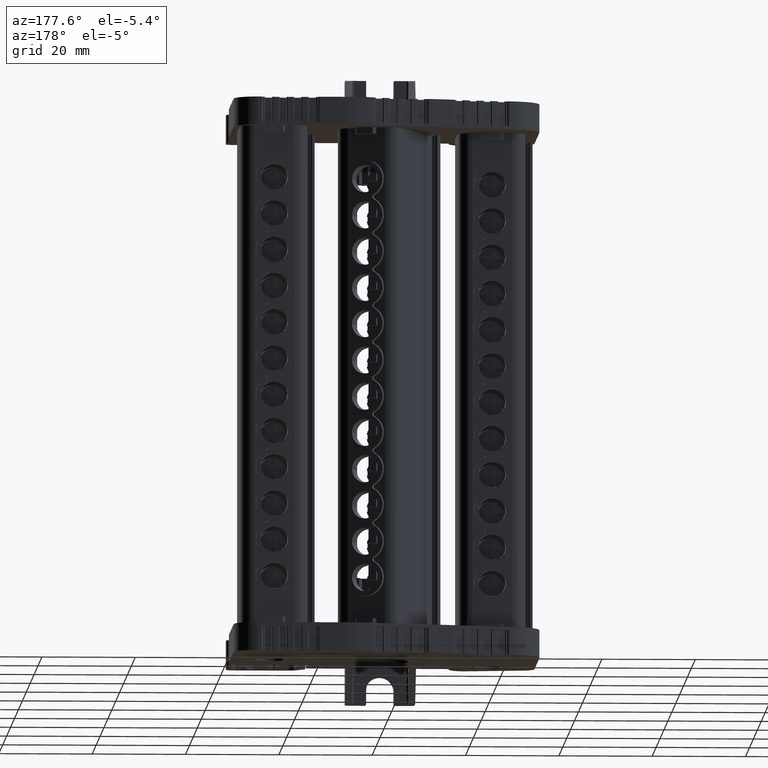
[diagram: clean part render]
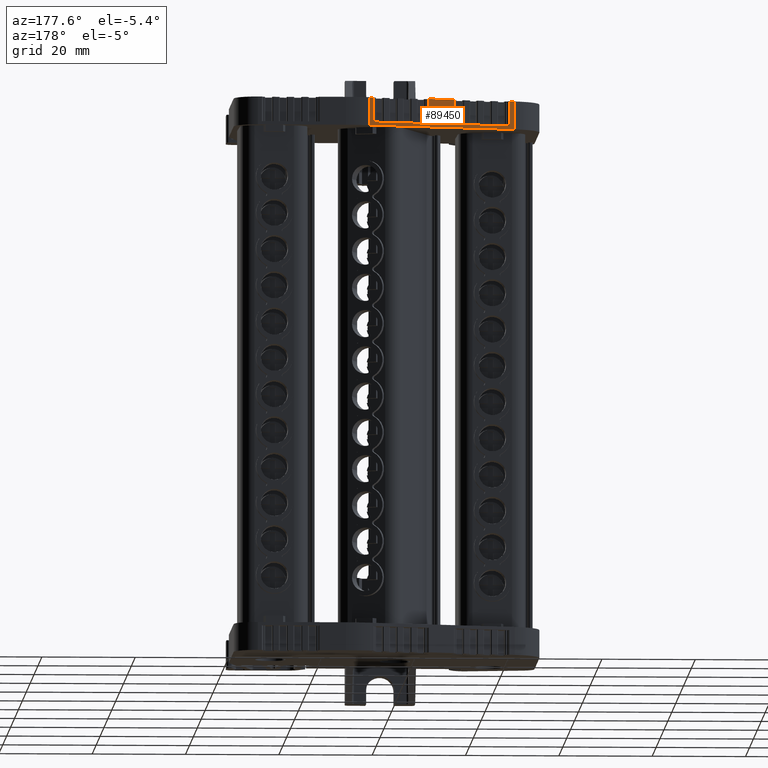
[diagram: same view with one face highlighted and labeled with its STEP entity id]
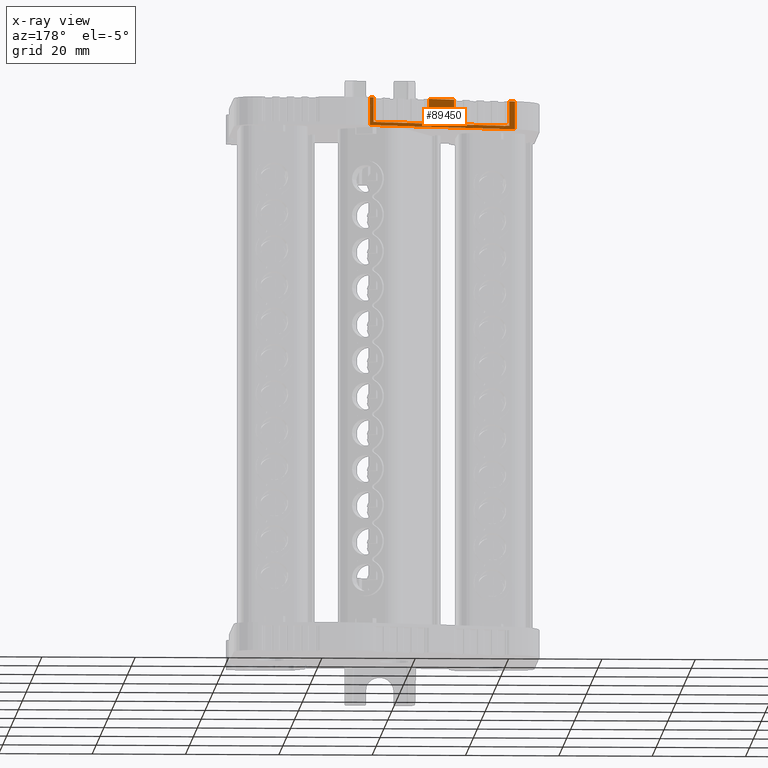
[diagram: x-ray of the same camera — body ghosted, the highlighted face saturated]
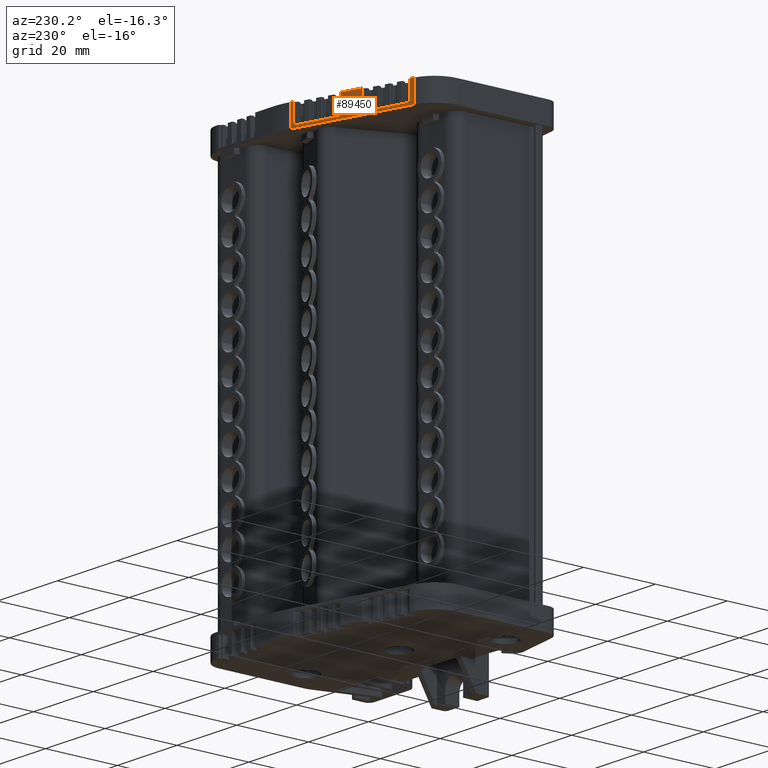
[diagram: same view with one face highlighted and labeled with its STEP entity id]
A machine part, auxiliary view. The second image highlights one B-rep face of the part: STEP entity #89450.
The next image is the same camera in x-ray: the body ghosted, the highlighted face saturated — about 0% of this face is hidden behind the body in this view.
A second angle (auxiliary view) of the same face is appended — the face is thin or edge-on in the first view.
In plain terms, the highlighted planar face has unit normal (-0.2588, 0.9659, -0).
Its self-contained STEP definition (entity closure, byte-faithful):
#961 = EDGE_LOOP ( 'NONE', ( #87790, #87722, #87743, #87727, #87809, #87742, #87738, #87792, #87734, #87737, #87735, #87788 ) ) ;
#6230 = EDGE_CURVE ( 'NONE', #78979, #78902, #32239, .T. ) ;
#6298 = EDGE_CURVE ( 'NONE', #78910, #78897, #31261, .T. ) ;
#22486 = VECTOR ( 'NONE', #32257, 1000.000000000000000 ) ;
#22622 = VECTOR ( 'NONE', #31249, 1000.000000000000000 ) ;
#31230 = CARTESIAN_POINT ( 'NONE',  ( -324.1494154311277500, 225.2976821044314900, 187.3439306799941700 ) ) ;
#31249 = DIRECTION ( 'NONE',  ( 1.457828397416817500E-015, -5.440689647876248100E-015, -1.000000000000000000 ) ) ;
#31261 = LINE ( 'NONE', #31230, #22622 ) ;
#31897 = VERTEX_POINT ( 'NONE', #62234 ) ;
#32000 = VERTEX_POINT ( 'NONE', #62326 ) ;
#32239 = LINE ( 'NONE', #32268, #22486 ) ;
#32257 = DIRECTION ( 'NONE',  ( 1.457828397416817500E-015, -5.440689647876248100E-015, -1.000000000000000000 ) ) ;
#32268 = CARTESIAN_POINT ( 'NONE',  ( -306.7293647406999100, 229.9653706190408700, 187.3439306799941700 ) ) ;
#33857 = VERTEX_POINT ( 'NONE', #65387 ) ;
#33894 = VERTEX_POINT ( 'NONE', #65510 ) ;
#33912 = VERTEX_POINT ( 'NONE', #65396 ) ;
#34178 = VERTEX_POINT ( 'NONE', #65696 ) ;
#34229 = VERTEX_POINT ( 'NONE', #65670 ) ;
#34360 = VERTEX_POINT ( 'NONE', #65779 ) ;
#50461 = CARTESIAN_POINT ( 'NONE',  ( -293.9450941710920200, 233.3909055939882900, 187.3439306799941700 ) ) ;
#50463 = DIRECTION ( 'NONE',  ( -0.9659258262890678700, -0.2588190451025219600, 0.0000000000000000000 ) ) ;
#50465 = PLANE ( 'NONE',  #51237 ) ;
#50479 = FACE_OUTER_BOUND ( 'NONE', #961, .T. ) ;
#50489 = DIRECTION ( 'NONE',  ( -0.2588190451025220200, 0.9659258262890679800, -5.632616397450004200E-015 ) ) ;
#51237 = AXIS2_PLACEMENT_3D ( 'NONE', #50461, #50489, #50463 ) ;
#62234 = CARTESIAN_POINT ( 'NONE',  ( -293.9450941710923600, 233.3909055939877000, 100.3119239351454700 ) ) ;
#62326 = CARTESIAN_POINT ( 'NONE',  ( -325.3365513887191000, 224.9795899832882900, 100.3119239351456700 ) ) ;
#63862 = EDGE_CURVE ( 'NONE', #78897, #33857, #80486, .T. ) ;
#63891 = EDGE_CURVE ( 'NONE', #33857, #33912, #80500, .T. ) ;
#63983 = EDGE_CURVE ( 'NONE', #78902, #34178, #80578, .T. ) ;
#64102 = EDGE_CURVE ( 'NONE', #34178, #33894, #80709, .T. ) ;
#64472 = EDGE_CURVE ( 'NONE', #33912, #78979, #79428, .T. ) ;
#64489 = EDGE_CURVE ( 'NONE', #34360, #78910, #79499, .T. ) ;
#64557 = EDGE_CURVE ( 'NONE', #33894, #34229, #79739, .T. ) ;
#65174 = EDGE_CURVE ( 'NONE', #34229, #31897, #84353, .T. ) ;
#65287 = EDGE_CURVE ( 'NONE', #31897, #32000, #85160, .T. ) ;
#65326 = EDGE_CURVE ( 'NONE', #34360, #32000, #85214, .T. ) ;
#65387 = CARTESIAN_POINT ( 'NONE',  ( -312.1366445724370900, 228.5164943548772700, 101.0119828081443700 ) ) ;
#65396 = CARTESIAN_POINT ( 'NONE',  ( -312.1366445724370900, 228.5164943548773000, 106.3124285608489700 ) ) ;
#65510 = CARTESIAN_POINT ( 'NONE',  ( -294.7166732605585400, 233.1841616000685100, 106.3124285608489700 ) ) ;
#65670 = CARTESIAN_POINT ( 'NONE',  ( -293.9450941710923600, 233.3909055939877200, 106.3124285608489700 ) ) ;
#65696 = CARTESIAN_POINT ( 'NONE',  ( -294.7166732605585400, 233.1841616000685100, 101.0119828081443700 ) ) ;
#65779 = CARTESIAN_POINT ( 'NONE',  ( -325.3365513887191000, 224.9795899832883200, 106.3124285608489000 ) ) ;
#70563 = VECTOR ( 'NONE', #80473, 1000.000000000000100 ) ;
#70658 = VECTOR ( 'NONE', #80543, 1000.000000000000000 ) ;
#70762 = VECTOR ( 'NONE', #80724, 1000.000000000000000 ) ;
#70859 = VECTOR ( 'NONE', #80549, 1000.000000000000100 ) ;
#71024 = VECTOR ( 'NONE', #79355, 1000.000000000000100 ) ;
#71256 = VECTOR ( 'NONE', #79716, 1000.000000000000100 ) ;
#71282 = VECTOR ( 'NONE', #79506, 1000.000000000000100 ) ;
#78897 = VERTEX_POINT ( 'NONE', #86501 ) ;
#78902 = VERTEX_POINT ( 'NONE', #86545 ) ;
#78910 = VERTEX_POINT ( 'NONE', #86557 ) ;
#78979 = VERTEX_POINT ( 'NONE', #86604 ) ;
#79355 = DIRECTION ( 'NONE',  ( 0.9659258262890678700, 0.2588190451025219600, -0.0000000000000000000 ) ) ;
#79428 = LINE ( 'NONE', #79452, #71024 ) ;
#79452 = CARTESIAN_POINT ( 'NONE',  ( -293.9450941710919100, 233.3909055939878400, 106.3124285608489700 ) ) ;
#79473 = CARTESIAN_POINT ( 'NONE',  ( -293.9450941710919100, 233.3909055939878400, 106.3124285608488900 ) ) ;
#79499 = LINE ( 'NONE', #79473, #71282 ) ;
#79506 = DIRECTION ( 'NONE',  ( 0.9659258262890678700, 0.2588190451025219600, -0.0000000000000000000 ) ) ;
#79687 = CARTESIAN_POINT ( 'NONE',  ( -293.9450941710919100, 233.3909055939878400, 106.3124285608489700 ) ) ;
#79716 = DIRECTION ( 'NONE',  ( 0.9659258262890678700, 0.2588190451025219600, -0.0000000000000000000 ) ) ;
#79739 = LINE ( 'NONE', #79687, #71256 ) ;
#80469 = CARTESIAN_POINT ( 'NONE',  ( -293.9450941710919100, 233.3909055939878100, 101.0119828081443700 ) ) ;
#80473 = DIRECTION ( 'NONE',  ( 0.9659258262890678700, 0.2588190451025219600, -0.0000000000000000000 ) ) ;
#80486 = LINE ( 'NONE', #80469, #70563 ) ;
#80500 = LINE ( 'NONE', #80501, #70658 ) ;
#80501 = CARTESIAN_POINT ( 'NONE',  ( -312.1366445724372600, 228.5164943548777200, 187.3439306799941700 ) ) ;
#80543 = DIRECTION ( 'NONE',  ( -1.457828397416817500E-015, 5.440689647876248100E-015, 1.000000000000000000 ) ) ;
#80549 = DIRECTION ( 'NONE',  ( 0.9659258262890678700, 0.2588190451025219600, -0.0000000000000000000 ) ) ;
#80556 = CARTESIAN_POINT ( 'NONE',  ( -293.9450941710919100, 233.3909055939878100, 101.0119828081443700 ) ) ;
#80578 = LINE ( 'NONE', #80556, #70859 ) ;
#80678 = CARTESIAN_POINT ( 'NONE',  ( -294.7166732605587100, 233.1841616000689300, 187.3439306799941700 ) ) ;
#80709 = LINE ( 'NONE', #80678, #70762 ) ;
#80724 = DIRECTION ( 'NONE',  ( -1.457828397416817500E-015, 5.440689647876248100E-015, 1.000000000000000000 ) ) ;
#81935 = VECTOR ( 'NONE', #84262, 1000.000000000000000 ) ;
#82009 = VECTOR ( 'NONE', #85171, 1000.000000000000100 ) ;
#82037 = VECTOR ( 'NONE', #85189, 1000.000000000000000 ) ;
#84262 = DIRECTION ( 'NONE',  ( 1.457828397416817500E-015, -5.440689647876248100E-015, -1.000000000000000000 ) ) ;
#84293 = CARTESIAN_POINT ( 'NONE',  ( -293.9450941710923600, 233.3909055939882100, 187.3439306799941700 ) ) ;
#84353 = LINE ( 'NONE', #84293, #81935 ) ;
#85160 = LINE ( 'NONE', #85178, #82009 ) ;
#85171 = DIRECTION ( 'NONE',  ( -0.9659258262890678700, -0.2588190451025219600, 0.0000000000000000000 ) ) ;
#85178 = CARTESIAN_POINT ( 'NONE',  ( -293.9450941710919100, 233.3909055939878100, 100.3119239351454900 ) ) ;
#85189 = DIRECTION ( 'NONE',  ( -3.956299522033005100E-015, -6.891400851611630800E-015, -1.000000000000000000 ) ) ;
#85214 = LINE ( 'NONE', #85230, #82037 ) ;
#85230 = CARTESIAN_POINT ( 'NONE',  ( -325.3365513887187600, 224.9795899832887800, 187.3439306799946000 ) ) ;
#86501 = CARTESIAN_POINT ( 'NONE',  ( -324.1494154311275200, 225.2976821044310300, 101.0119828081443700 ) ) ;
#86545 = CARTESIAN_POINT ( 'NONE',  ( -306.7293647406997900, 229.9653706190403900, 101.0119828081443700 ) ) ;
#86557 = CARTESIAN_POINT ( 'NONE',  ( -324.1494154311275200, 225.2976821044310600, 106.3124285608489300 ) ) ;
#86604 = CARTESIAN_POINT ( 'NONE',  ( -306.7293647406997900, 229.9653706190404400, 106.3124285608489700 ) ) ;
#87722 = ORIENTED_EDGE ( 'NONE', *, *, #63983, .T. ) ;
#87727 = ORIENTED_EDGE ( 'NONE', *, *, #64557, .T. ) ;
#87734 = ORIENTED_EDGE ( 'NONE', *, *, #6298, .T. ) ;
#87735 = ORIENTED_EDGE ( 'NONE', *, *, #63891, .T. ) ;
#87737 = ORIENTED_EDGE ( 'NONE', *, *, #63862, .T. ) ;
#87738 = ORIENTED_EDGE ( 'NONE', *, *, #65326, .F. ) ;
#87742 = ORIENTED_EDGE ( 'NONE', *, *, #65287, .T. ) ;
#87743 = ORIENTED_EDGE ( 'NONE', *, *, #64102, .T. ) ;
#87788 = ORIENTED_EDGE ( 'NONE', *, *, #64472, .T. ) ;
#87790 = ORIENTED_EDGE ( 'NONE', *, *, #6230, .T. ) ;
#87792 = ORIENTED_EDGE ( 'NONE', *, *, #64489, .T. ) ;
#87809 = ORIENTED_EDGE ( 'NONE', *, *, #65174, .T. ) ;
#89450 = ADVANCED_FACE ( 'NONE', ( #50479 ), #50465, .T. ) ;